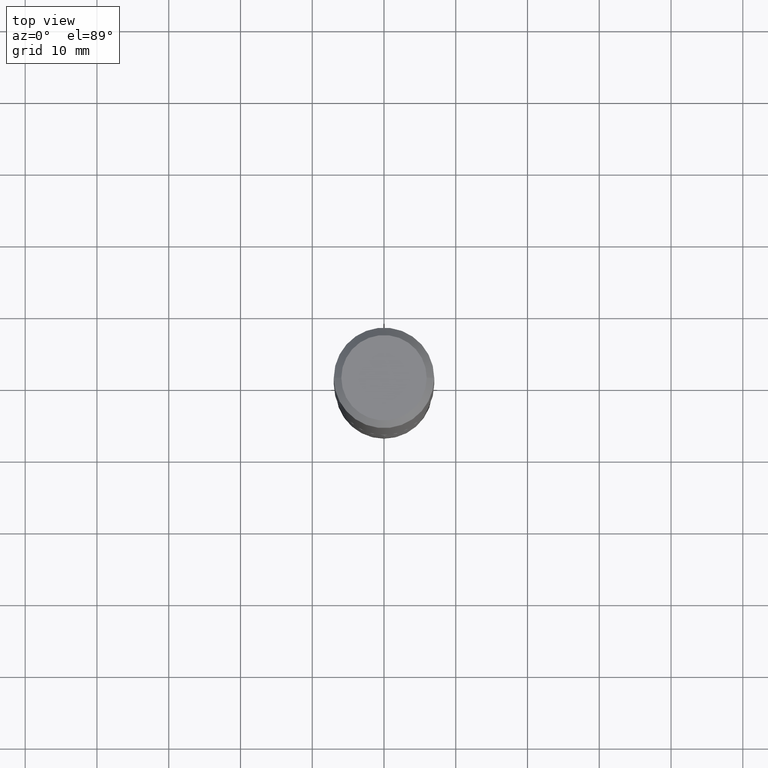
[diagram: clean part render]
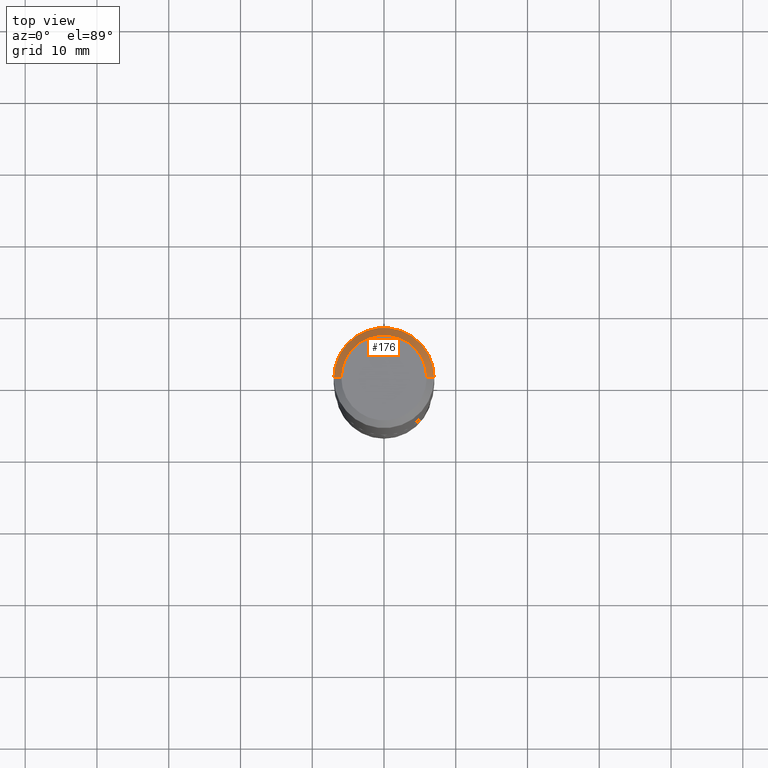
[diagram: same view with one face highlighted and labeled with its STEP entity id]
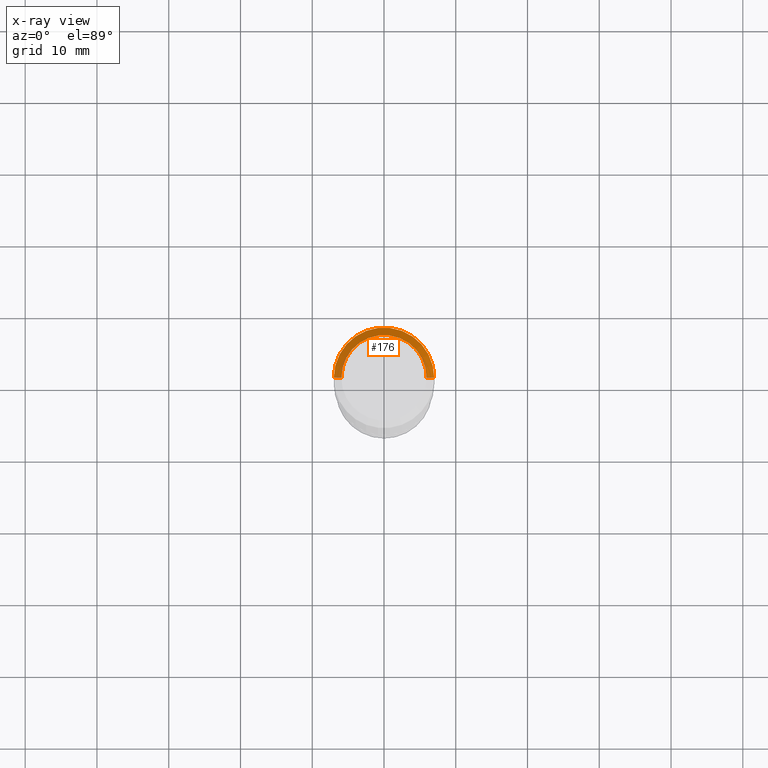
[diagram: x-ray of the same camera — body ghosted, the highlighted face saturated]
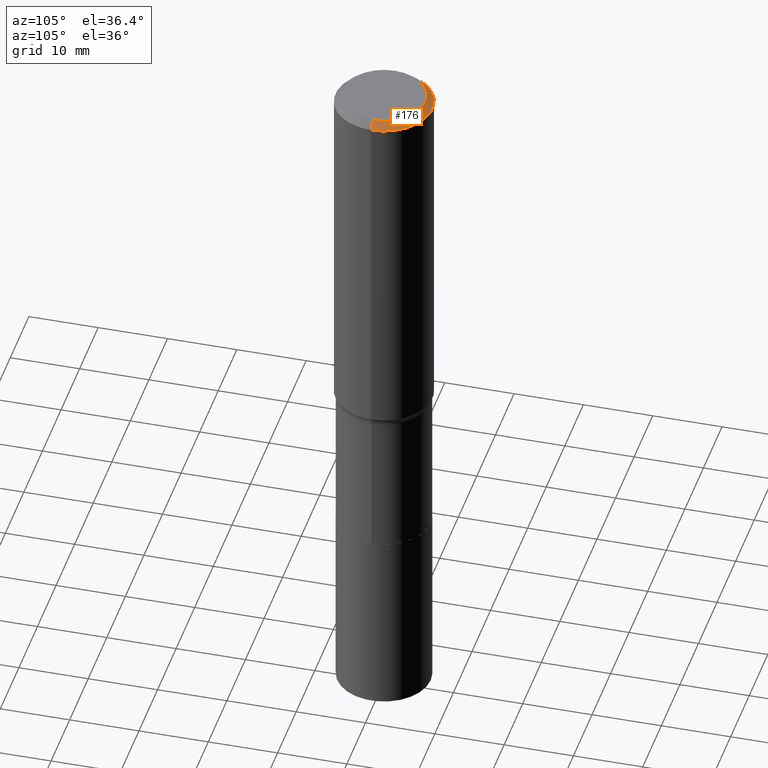
[diagram: same view with one face highlighted and labeled with its STEP entity id]
A machine part, top view. The second image highlights one B-rep face of the part: STEP entity #176.
The next image is the same camera in x-ray: the body ghosted, the highlighted face saturated — about 0% of this face is hidden behind the body in this view.
A second angle (auxiliary view) of the same face is appended — the face is thin or edge-on in the first view.
In plain terms, the highlighted conical surface has half-angle 45 deg.
Its self-contained STEP definition (entity closure, byte-faithful):
#14 = DIRECTION ( 'NONE',  ( 2.445468806185136597E-29, -3.491481338843145583E-15, -1.000000000000000000 ) ) ;
#32 = DIRECTION ( 'NONE',  ( -2.445468806185136597E-29, 3.491481338843145583E-15, 1.000000000000000000 ) ) ;
#39 = VERTEX_POINT ( 'NONE', #462 ) ;
#47 = VECTOR ( 'NONE', #281, 39.37007874015748143 ) ;
#50 = VERTEX_POINT ( 'NONE', #360 ) ;
#51 = CARTESIAN_POINT ( 'NONE',  ( 0.2342600000000000238, -1.821115673845785155E-15, 4.101342130356573868E-18 ) ) ;
#55 = AXIS2_PLACEMENT_3D ( 'NONE', #359, #361, #248 ) ;
#58 = FACE_OUTER_BOUND ( 'NONE', #271, .T. ) ;
#80 = DIRECTION ( 'NONE',  ( -1.000000000000000000, 6.982962677686267499E-15, 0.000000000000000000 ) ) ;
#82 = VERTEX_POINT ( 'NONE', #51 ) ;
#87 = CARTESIAN_POINT ( 'NONE',  ( -0.2756000000000000116, -1.629559934575154235E-15, -0.04134000000000025848 ) ) ;
#88 = VERTEX_POINT ( 'NONE', #87 ) ;
#106 = CIRCLE ( 'NONE', #369, 0.2756000000000000116 ) ;
#140 = VECTOR ( 'NONE', #234, 39.37007874015748143 ) ;
#176 = ADVANCED_FACE ( 'NONE', ( #58 ), #393, .T. ) ;
#188 = EDGE_CURVE ( 'NONE', #39, #88, #315, .T. ) ;
#198 = ORIENTED_EDGE ( 'NONE', *, *, #188, .F. ) ;
#234 = DIRECTION ( 'NONE',  ( -0.7071067811865452413, 2.468850131082233000E-15, -0.7071067811865497932 ) ) ;
#248 = DIRECTION ( 'NONE',  ( 1.000000000000000000, -6.982962677686267499E-15, 4.876157962347795834E-29 ) ) ;
#250 = LINE ( 'NONE', #392, #47 ) ;
#258 = ORIENTED_EDGE ( 'NONE', *, *, #293, .T. ) ;
#260 = CIRCLE ( 'NONE', #55, 0.2342600000000000238 ) ;
#268 = CARTESIAN_POINT ( 'NONE',  ( 1.010956804476941872E-30, -1.443378385477765316E-16, -0.04134000000000025848 ) ) ;
#271 = EDGE_LOOP ( 'NONE', ( #348, #371, #258, #198 ) ) ;
#281 = DIRECTION ( 'NONE',  ( 0.7071067811865452413, -7.319954787623248157E-15, -0.7071067811865497932 ) ) ;
#289 = DIRECTION ( 'NONE',  ( 1.000000000000000000, -6.982962677686267499E-15, 0.000000000000000000 ) ) ;
#293 = EDGE_CURVE ( 'NONE', #50, #88, #106, .T. ) ;
#315 = LINE ( 'NONE', #451, #140 ) ;
#334 = EDGE_CURVE ( 'NONE', #82, #39, #260, .T. ) ;
#348 = ORIENTED_EDGE ( 'NONE', *, *, #334, .F. ) ;
#358 = AXIS2_PLACEMENT_3D ( 'NONE', #268, #14, #80 ) ;
#359 = CARTESIAN_POINT ( 'NONE',  ( -1.002970424325033577E-46, 1.431975951230896486E-32, 4.101342130344485961E-18 ) ) ;
#360 = CARTESIAN_POINT ( 'NONE',  ( 0.2756000000000000116, -2.068842352518111732E-15, -0.04134000000000025848 ) ) ;
#361 = DIRECTION ( 'NONE',  ( -2.445468806185136597E-29, 3.491481338843145583E-15, 1.000000000000000000 ) ) ;
#369 = AXIS2_PLACEMENT_3D ( 'NONE', #460, #32, #289 ) ;
#371 = ORIENTED_EDGE ( 'NONE', *, *, #376, .T. ) ;
#376 = EDGE_CURVE ( 'NONE', #82, #50, #250, .T. ) ;
#392 = CARTESIAN_POINT ( 'NONE',  ( 0.2756000000000000116, -2.035091086733610886E-15, -0.04134000000000025848 ) ) ;
#393 = CONICAL_SURFACE ( 'NONE', #358, 0.2756000000000000116, 0.7853981633974450594 ) ;
#451 = CARTESIAN_POINT ( 'NONE',  ( -0.2756000000000000116, 1.780166675422558965E-15, -0.04134000000000025848 ) ) ;
#460 = CARTESIAN_POINT ( 'NONE',  ( 1.010956804476941872E-30, -1.443378385477765316E-16, -0.04134000000000025848 ) ) ;
#462 = CARTESIAN_POINT ( 'NONE',  ( -0.2342600000000000238, 1.707997756148671759E-15, 4.101342130332794026E-18 ) ) ;